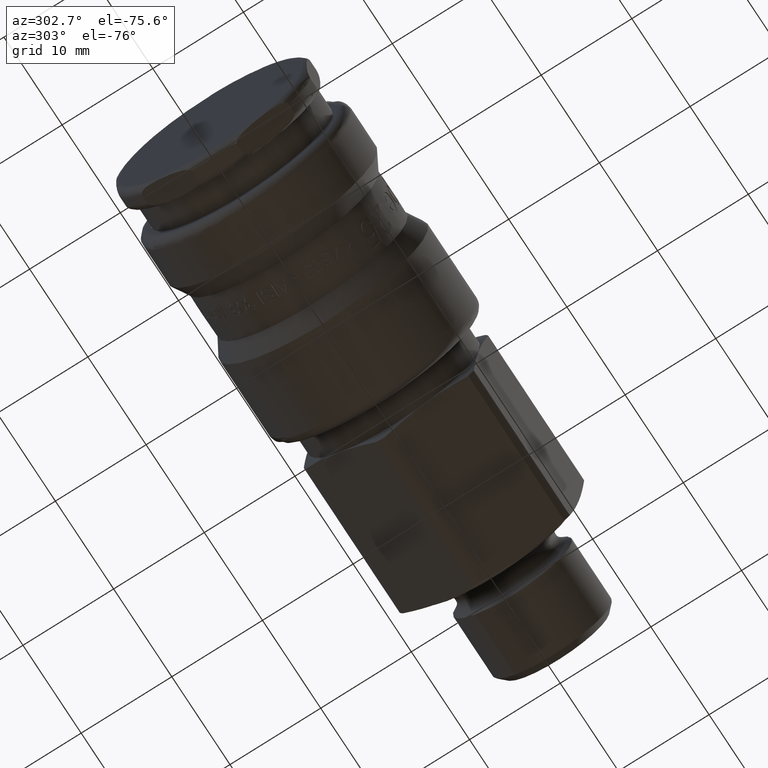
[diagram: clean part render]
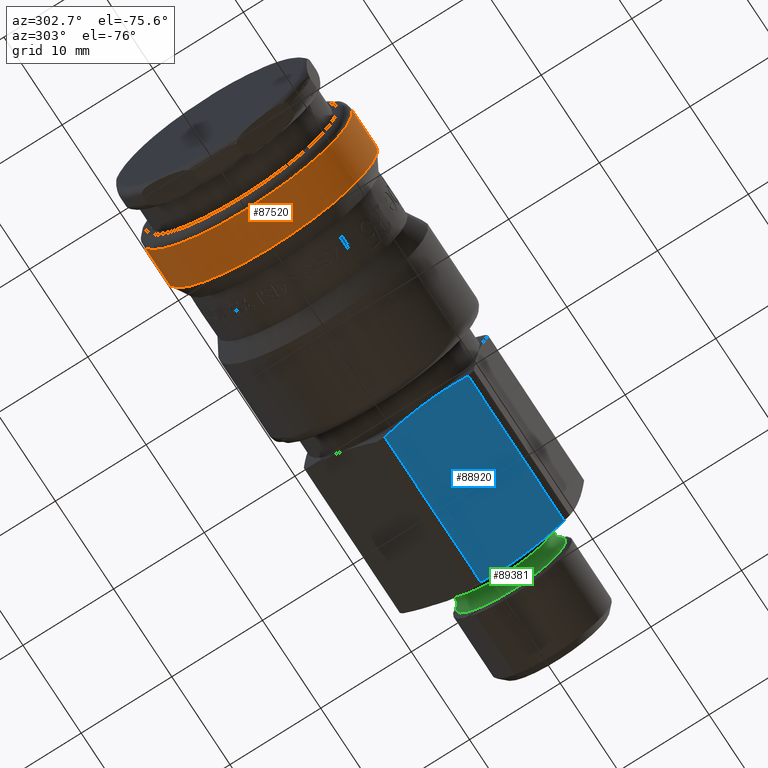
[diagram: same view with three faces highlighted in distinct colors, each labeled with its STEP entity id]
A machine part, auxiliary view with three faces highlighted in distinct colors.
Their STEP definitions:

[orange] entity #87520 — the highlighted cylindrical surface (bore or boss wall) has radius 11.575 mm, axis along (1, 0, 0).
#87489=CARTESIAN_POINT('',(6.250000000000000,5.497306160585969,10.186277532876453));
#87490=VERTEX_POINT('',#87489);
#87491=CARTESIAN_POINT('',(6.250000000000000,0.0,0.0));
#87492=DIRECTION('',(-1.000000000000000,0.0,0.0));
#87493=DIRECTION('',(0.0,-0.474929257933993,-0.880023976922372));
#87494=AXIS2_PLACEMENT_3D('',#87491,#87492,#87493);
#87495=CIRCLE('',#87494,11.575000000000003);
#87496=EDGE_CURVE('',#87490,#87490,#87495,.T.);
#87501=CARTESIAN_POINT('',(7.919022690931728,0.0,0.0));
#87502=DIRECTION('',(1.0,0.0,0.0));
#87503=DIRECTION('',(0.0,0.474929257933993,0.880023976922372));
#87504=AXIS2_PLACEMENT_3D('',#87501,#87502,#87503);
#87505=CYLINDRICAL_SURFACE('',#87504,11.575000000000005);
#87506=CARTESIAN_POINT('',(10.588045381863454,5.497306160585966,10.186277532876456));
#87507=VERTEX_POINT('',#87506);
#87508=CARTESIAN_POINT('',(10.588045381863454,0.0,0.0));
#87509=DIRECTION('',(1.000000000000000,0.0,0.0));
#87510=DIRECTION('',(0.0,0.474929257933993,0.880023976922372));
#87511=AXIS2_PLACEMENT_3D('',#87508,#87509,#87510);
#87512=CIRCLE('',#87511,11.575000000000003);
#87513=EDGE_CURVE('',#87507,#87507,#87512,.T.);
#87514=ORIENTED_EDGE('',*,*,#87513,.F.);
#87515=EDGE_LOOP('',(#87514));
#87516=FACE_OUTER_BOUND('',#87515,.T.);
#87517=ORIENTED_EDGE('',*,*,#87496,.F.);
#87518=EDGE_LOOP('',(#87517));
#87519=FACE_BOUND('',#87518,.T.);
#87520=ADVANCED_FACE('',(#87516,#87519),#87505,.T.);

[blue] entity #88920 — the highlighted planar face has unit normal (-0, 0.3545, 0.935).
#88852=CARTESIAN_POINT('',(29.574072984959155,-3.368111515131864,-8.882895069831472));
#88853=DIRECTION('',(-2.127102E-016,0.354538054224406,0.935041586298049));
#88854=DIRECTION('',(0.0,0.935041586298049,-0.354538054224406));
#88855=AXIS2_PLACEMENT_3D('',#88852,#88853,#88854);
#88856=PLANE('',#88855);
#88857=CARTESIAN_POINT('',(48.278460969082658,-7.971707837455106,-7.137357645113269));
#88858=VERTEX_POINT('',#88857);
#88859=CARTESIAN_POINT('',(48.600000000000009,-3.368111515131863,-8.882895069831470));
#88860=VERTEX_POINT('',#88859);
#88861=CARTESIAN_POINT('',(48.278460969082658,-7.971707837455143,-7.137357645113256));
#88862=CARTESIAN_POINT('',(48.600000000000009,-5.533169191472052,-8.061974003751107));
#88863=CARTESIAN_POINT('',(48.600000000000009,-3.368111515131864,-8.882895069831468));
#88871=(BOUNDED_CURVE()B_SPLINE_CURVE(2,(#88861,#88862,#88863),.UNSPECIFIED.,.F.,.U.)B_SPLINE_CURVE_WITH_KNOTS((3,3),(0.0,0.493628243022417),.UNSPECIFIED.)CURVE()GEOMETRIC_REPRESENTATION_ITEM()RATIONAL_B_SPLINE_CURVE((1.0,1.031095482841757,1.0))REPRESENTATION_ITEM(''));
#88872=EDGE_CURVE('',#88858,#88860,#88871,.T.);
#88873=ORIENTED_EDGE('',*,*,#88872,.F.);
#88874=CARTESIAN_POINT('',(31.778237760728139,-7.971707837455107,-7.137357645113274));
#88875=VERTEX_POINT('',#88874);
#88876=CARTESIAN_POINT('',(31.778237760728139,-7.971707837455111,-7.137357645113270));
#88877=DIRECTION('',(1.0,0.0,0.0));
#88878=VECTOR('',#88877,16.500223208354519);
#88879=LINE('',#88876,#88878);
#88880=EDGE_CURVE('',#88875,#88858,#88879,.T.);
#88881=ORIENTED_EDGE('',*,*,#88880,.F.);
#88882=CARTESIAN_POINT('',(31.778237760728139,1.235484807191379,-10.628432494549674));
#88883=VERTEX_POINT('',#88882);
#88884=CARTESIAN_POINT('',(31.778237760728139,1.235484807191408,-10.628432494549681));
#88885=CARTESIAN_POINT('',(31.171220150958934,-3.368111515131869,-8.882895069831472));
#88886=CARTESIAN_POINT('',(31.778237760728139,-7.971707837455137,-7.137357645113264));
#88894=(BOUNDED_CURVE()B_SPLINE_CURVE(2,(#88884,#88885,#88886),.UNSPECIFIED.,.F.,.U.)B_SPLINE_CURVE_WITH_KNOTS((3,3),(0.0,0.986780367628045),.UNSPECIFIED.)CURVE()GEOMETRIC_REPRESENTATION_ITEM()RATIONAL_B_SPLINE_CURVE((1.0,1.126315789473696,1.0))REPRESENTATION_ITEM(''));
#88895=EDGE_CURVE('',#88883,#88875,#88894,.T.);
#88896=ORIENTED_EDGE('',*,*,#88895,.F.);
#88897=CARTESIAN_POINT('',(48.278460969082658,1.235484807191380,-10.628432494549669));
#88898=VERTEX_POINT('',#88897);
#88899=CARTESIAN_POINT('',(48.278460969082658,1.235484807191383,-10.628432494549671));
#88900=DIRECTION('',(-1.0,0.0,0.0));
#88901=VECTOR('',#88900,16.500223208354519);
#88902=LINE('',#88899,#88901);
#88903=EDGE_CURVE('',#88898,#88883,#88902,.T.);
#88904=ORIENTED_EDGE('',*,*,#88903,.F.);
#88905=CARTESIAN_POINT('',(48.600000000000009,-3.368111515131864,-8.882895069831468));
#88906=CARTESIAN_POINT('',(48.600000000000009,-1.203053838791673,-9.703816135911831));
#88907=CARTESIAN_POINT('',(48.278460969082658,1.235484807191418,-10.628432494549681));
#88915=(BOUNDED_CURVE()B_SPLINE_CURVE(2,(#88905,#88906,#88907),.UNSPECIFIED.,.F.,.U.)B_SPLINE_CURVE_WITH_KNOTS((3,3),(0.493628243022417,0.987256486044835),.UNSPECIFIED.)CURVE()GEOMETRIC_REPRESENTATION_ITEM()RATIONAL_B_SPLINE_CURVE((1.0,1.031095482841761,1.0))REPRESENTATION_ITEM(''));
#88916=EDGE_CURVE('',#88860,#88898,#88915,.T.);
#88917=ORIENTED_EDGE('',*,*,#88916,.F.);
#88918=EDGE_LOOP('',(#88873,#88881,#88896,#88904,#88917));
#88919=FACE_OUTER_BOUND('',#88918,.T.);
#88920=ADVANCED_FACE('',(#88919),#88856,.F.);

[green] entity #89381 — the highlighted toroidal blend (fillet) surface has major radius 6.6152 mm and minor (blend) radius 1.0652 mm.
#89347=CARTESIAN_POINT('',(51.513686602410900,3.847243087604486,-4.711329920728665));
#89348=VERTEX_POINT('',#89347);
#89349=CARTESIAN_POINT('',(51.513686602410900,0.0,0.0));
#89350=DIRECTION('',(-1.000000000000000,0.0,0.0));
#89351=DIRECTION('',(0.0,0.632500740216807,-0.774559754715665));
#89352=AXIS2_PLACEMENT_3D('',#89349,#89350,#89351);
#89353=CIRCLE('',#89352,6.082590648487999);
#89354=EDGE_CURVE('',#89348,#89348,#89353,.T.);
#89362=CARTESIAN_POINT('',(50.591212539593627,0.0,0.0));
#89363=DIRECTION('',(-1.0,0.0,0.0));
#89364=DIRECTION('',(0.0,0.774559754715665,0.632500740216807));
#89365=AXIS2_PLACEMENT_3D('',#89362,#89363,#89364);
#89366=TOROIDAL_SURFACE('',#89365,6.615181296976001,1.065181296976000);
#89367=CARTESIAN_POINT('',(49.838015621308820,3.707709458661535,-4.540457182506110));
#89368=VERTEX_POINT('',#89367);
#89369=CARTESIAN_POINT('',(49.838015621308820,0.0,0.0));
#89370=DIRECTION('',(-1.0,0.0,0.0));
#89371=DIRECTION('',(0.0,0.632500740216807,-0.774559754715665));
#89372=AXIS2_PLACEMENT_3D('',#89369,#89370,#89371);
#89373=CIRCLE('',#89372,5.861984378691189);
#89374=EDGE_CURVE('',#89368,#89368,#89373,.T.);
#89375=ORIENTED_EDGE('',*,*,#89374,.F.);
#89376=EDGE_LOOP('',(#89375));
#89377=FACE_OUTER_BOUND('',#89376,.T.);
#89378=ORIENTED_EDGE('',*,*,#89354,.T.);
#89379=EDGE_LOOP('',(#89378));
#89380=FACE_BOUND('',#89379,.T.);
#89381=ADVANCED_FACE('',(#89377,#89380),#89366,.F.);